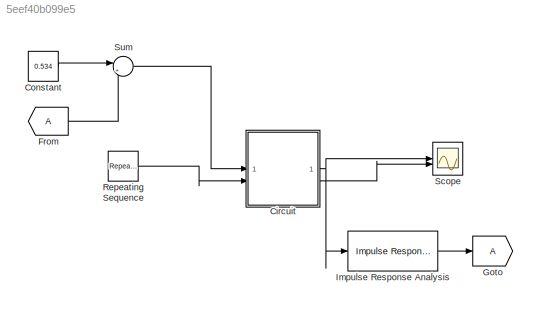
MODEL mdl_5eef40b099e5
KIND model
CONFIG AbsTol = auto
CONFIG EnableMultiTasking = off
CONFIG FixedStep = auto
CONFIG MaxStep = 1e-8
CONFIG MinStep = auto
CONFIG RelTol = 1e-3
CONFIG SampleTimeConstraint = Unconstrained
CONFIG SolverName = ode45
CONFIG StartTime = 0.0
CONFIG StopTime = 0.01
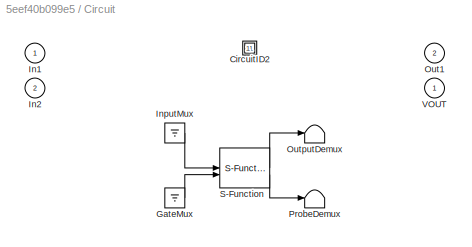
BLOCK [SubSystem] Circuit
  CopyFcn = plecs('sl', 203);
  DeleteFcn = plecs('sl', 205);
  DestroyFcn = plecs('sl', 207);
  ErrorFcn = plerrorfcn
  InitFcn = plecs('sl', 214);
  LoadFcn = plecs('sl', 200);
  NameChangeFcn = plecs('sl', 210);
  OpenFcn = plecs('sl', 202);
  PostSaveFcn = plecs('sl', 201);
  PreCopyFcn = plecs('sl', 216);
  PreSaveFcn = plecs('sl', 211);
  StartFcn = plecs('sl', 208);
  StopFcn = plecs('sl', 209);
  UndoDeleteFcn = plecs('sl', 206);
BLOCK [SubSystem] Circuit/ CircuitID2 
BLOCK [Ground] Circuit/ GateMux 
BLOCK [Ground] Circuit/ InputMux 
BLOCK [Terminator] Circuit/ OutputDemux 
BLOCK [Terminator] Circuit/ ProbeDemux 
BLOCK [S-Function] Circuit/ S-Function 
  EnableBusSupport = off
  FunctionName = plecs
  SFcnIsStateOwnerBlock = off
  SFunctionDeploymentMode = off
BLOCK [Inport] Circuit/In1
  PortDimensions = 1
BLOCK [Inport] Circuit/In2
  Port = 2
  PortDimensions = 1
BLOCK [Outport] Circuit/Out1
  Port = 2
  PortDimensions = 1
BLOCK [Outport] Circuit/VOUT
  PortDimensions = 1
BLOCK [Constant] Constant
  Value = 0.534
BLOCK [From] From
BLOCK [Goto] Goto
BLOCK [Reference] Impulse Response Analysis  REF=plecslib_extras2/Analysis Tools/Impulse Response Analysis
  SourceBlock = plecslib_extras2/Analysis Tools/Impulse Response Analysis
  SourceProductName = PLECS Extras
  SourceType = PLECS Impulse Response Analysis
BLOCK [Reference] Repeating Sequence  REF=simulink/Sources/Repeating
Sequence
  SourceBlock = simulink/Sources/Repeating\nSequence
  SourceType = Repeating table
BLOCK [Scope] Scope
  Floating = off
  NumInputPorts = 2
  ScopeSpecificationString = Simulink.scopes.TimeScopeBlockCfg('CurrentConfiguration', extmgr.ConfigurationSet(extmgr.Configuration('Core','General UI',true),extmgr.Configuration('Core','Source UI',true),extmgr.Configuration('Sources','WiredSimulink',true),extmgr.Configuration('Visuals','Time Domain',true,'SerializedDisplays',{struct('MinYLimReal','1.91403','MaxYLimReal','2.086','YLabelReal','','MinYLimMag','1.91403','MaxYLim...<+1331ch>
BLOCK [Sum] Sum
  Inputs = |++
NET Circuit:1 -> Impulse Response Analysis:1, Scope:1
LINE Circuit:2 -> Scope:2
LINE Constant:1 -> Sum:1
LINE From:1 -> Sum:2
LINE Impulse Response Analysis:1 -> Goto:1
LINE Repeating Sequence:1 -> Circuit:2
LINE Sum:1 -> Circuit:1
note: NET lines group one-source signal fan-out (src -> all destinations, sorted); 1:1 wires keep LINE
